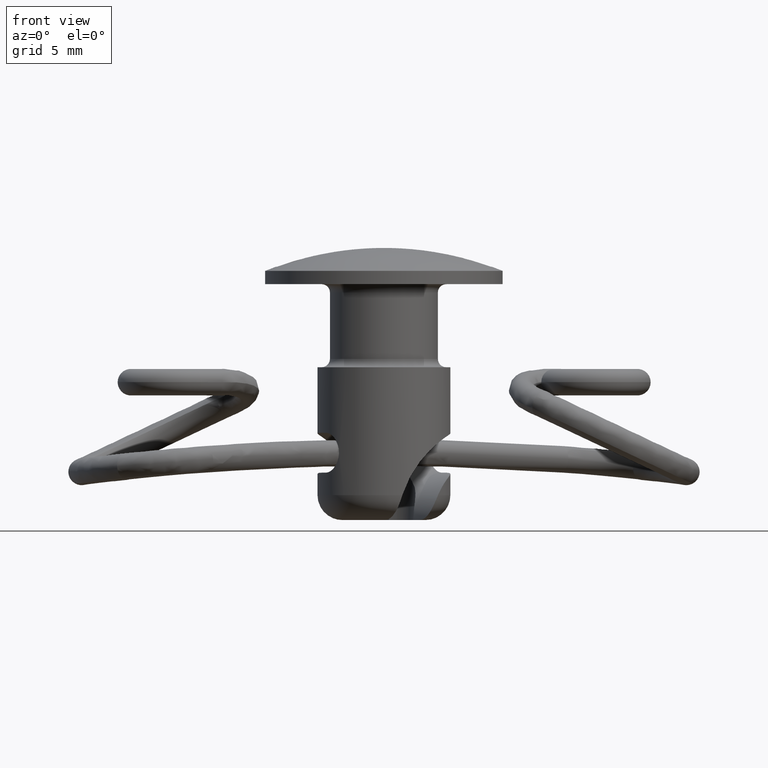
[diagram: clean part render]
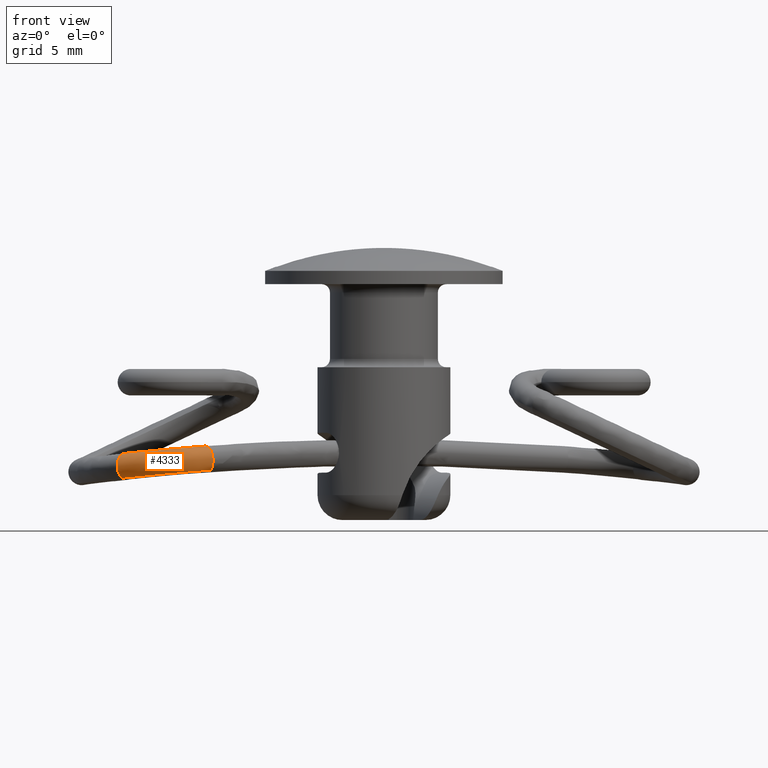
[diagram: same view with one face highlighted and labeled with its STEP entity id]
A machine part, front view. The second image highlights one B-rep face of the part: STEP entity #4333.
In plain terms, the highlighted face is a freeform B-spline surface patch.
Its self-contained STEP definition (entity closure, byte-faithful):
#18 = CARTESIAN_POINT ( 'NONE',  ( -15.02930971587724900, -5.372364427299720200, -0.2322864669839410400 ) ) ;
#44 = CARTESIAN_POINT ( 'NONE',  ( -15.00189817124306500, -5.617182274750339500, -0.1130870904866344800 ) ) ;
#96 = CARTESIAN_POINT ( 'NONE',  ( -15.48498928627725000, -5.458920693469810500, -0.04882895653695230200 ) ) ;
#126 = CARTESIAN_POINT ( 'NONE',  ( -15.41867331236455000, -5.813277276531279900, 0.001849039235528509900 ) ) ;
#152 = CARTESIAN_POINT ( 'NONE',  ( -15.46886752409985100, -6.279573824267040500, -0.08750746950594809300 ) ) ;
#184 = CARTESIAN_POINT ( 'NONE',  ( -15.14365453789425000, -6.694896460229360400, -0.1804110488929655000 ) ) ;
#217 = CARTESIAN_POINT ( 'NONE',  ( -14.99054054157909900, -7.015966906098349800, -0.5164090022142989700 ) ) ;
#249 = CARTESIAN_POINT ( 'NONE',  ( -14.27580094091183900, -7.358010234672909700, -0.6671127272029120400 ) ) ;
#279 = CARTESIAN_POINT ( 'NONE',  ( -13.71798319859626000, -7.401146828258419900, -1.025335324360812100 ) ) ;
#315 = CARTESIAN_POINT ( 'NONE',  ( -12.21565495642188100, -7.416354807816950300, -1.074205917808259900 ) ) ;
#347 = CARTESIAN_POINT ( 'NONE',  ( -11.30877912686222000, -6.868109711038539600, -1.229501397181409900 ) ) ;
#374 = CARTESIAN_POINT ( 'NONE',  ( -15.71412257324891500, -5.816220919460895400, -0.05144891518670393500 ) ) ;
#378 = CARTESIAN_POINT ( 'NONE',  ( -10.60735959630821900, -6.209621772410620200, -1.219698962427302000 ) ) ;
#411 = CARTESIAN_POINT ( 'NONE',  ( -15.25139657203550100, -5.156299177255849700, -1.430897479078141900 ) ) ;
#442 = CARTESIAN_POINT ( 'NONE',  ( -15.09176781806720100, -5.021845710097149900, -1.062465916509933900 ) ) ;
#452 = VERTEX_POINT ( 'NONE', #4572 ) ;
#473 = CARTESIAN_POINT ( 'NONE',  ( -15.02895409303450000, -5.040186361077609900, -0.8332329620564740100 ) ) ;
#507 = CARTESIAN_POINT ( 'NONE',  ( -11.64454450115385100, -6.187033265300744500, 0.2013620311950771500 ) ) ;
#545 = VERTEX_POINT ( 'NONE', #8768 ) ;
#549 = ORIENTED_EDGE ( 'NONE', *, *, #8352, .F. ) ;
#566 = CARTESIAN_POINT ( 'NONE',  ( -15.74401823566723400, -6.036276767268649500, -1.534523566771248000 ) ) ;
#570 = EDGE_LOOP ( 'NONE', ( #3279, #6778, #7228, #549, #1094 ) ) ;
#579 = B_SPLINE_CURVE_WITH_KNOTS ( 'NONE', 3,
 ( #2199, #7173, #3694, #8590 ),
 .UNSPECIFIED., .F., .F.,
 ( 4, 4 ),
 ( 0.002021082293604056000, 0.002464762470341464200 ),
 .UNSPECIFIED. ) ;
#684 = CARTESIAN_POINT ( 'NONE',  ( -14.79873471016542100, -5.370092543939669800, -0.3954694969272865000 ) ) ;
#696 = B_SPLINE_CURVE_WITH_KNOTS ( 'NONE', 3,
 ( #2649, #4044, #566, #5444, #1268, #6140, #1976, #6856, #2676, #7556, #3377, #8267 ),
 .UNSPECIFIED., .F., .F.,
 ( 4, 2, 2, 2, 2, 4 ),
 ( -0.001329124780657074200, 0.0000000000000000000, 0.1250000000000000000, 0.2499999999999999700, 0.5000000000000000000, 1.000000000000000000 ),
 .UNSPECIFIED. ) ;
#713 = CARTESIAN_POINT ( 'NONE',  ( -14.57440543778739800, -5.671496985014401000, -0.1841871178805074800 ) ) ;
#739 = CARTESIAN_POINT ( 'NONE',  ( -14.49778348330454000, -5.915004468649350100, -0.06043541979251460700 ) ) ;
#741 = CARTESIAN_POINT ( 'NONE',  ( -15.46060171651869900, -5.238380405944560000, -0.1626451365804365000 ) ) ;
#768 = CARTESIAN_POINT ( 'NONE',  ( -15.15190015479029900, -5.507335289364520200, -0.1291316060067578000 ) ) ;
#795 = CARTESIAN_POINT ( 'NONE',  ( -15.11356420063525100, -5.760701711634409200, -0.008769117166070979800 ) ) ;
#828 = CARTESIAN_POINT ( 'NONE',  ( -14.87772599625540200, -6.171882785471130000, 0.05892479698863260100 ) ) ;
#858 = CARTESIAN_POINT ( 'NONE',  ( -14.85714895989347900, -6.640926086031539600, -0.02388436003081129800 ) ) ;
#869 = VERTEX_POINT ( 'NONE', #6859 ) ;
#893 = CARTESIAN_POINT ( 'NONE',  ( -14.25136646792312000, -7.097282387429360500, -0.09029062353202109400 ) ) ;
#924 = CARTESIAN_POINT ( 'NONE',  ( -13.78640542446244100, -7.444682807807240000, -0.3975910796361234500 ) ) ;
#956 = CARTESIAN_POINT ( 'NONE',  ( -12.24394950544912100, -7.633286509575670600, -0.4784288708766409900 ) ) ;
#988 = CARTESIAN_POINT ( 'NONE',  ( -11.19109056640944100, -7.332112399492400500, -0.8029766150277659600 ) ) ;
#1020 = CARTESIAN_POINT ( 'NONE',  ( -10.34336892242030000, -6.704679470836469900, -0.9267389175951389300 ) ) ;
#1051 = CARTESIAN_POINT ( 'NONE',  ( -15.61775444327454900, -5.607907636769259500, -1.680758436443815100 ) ) ;
#1084 = CARTESIAN_POINT ( 'NONE',  ( -15.31107385909070100, -5.339762659919269800, -1.563902302091960000 ) ) ;
#1094 = ORIENTED_EDGE ( 'NONE', *, *, #3648, .T. ) ;
#1117 = CARTESIAN_POINT ( 'NONE',  ( -15.14786096530910200, -5.246513926838880500, -1.419657245253492100 ) ) ;
#1146 = CARTESIAN_POINT ( 'NONE',  ( -14.83670794210752100, -5.244064188758129900, -1.034775879140316100 ) ) ;
#1268 = CARTESIAN_POINT ( 'NONE',  ( -15.36341653956057500, -6.342138234676699700, -1.493558375437982400 ) ) ;
#1361 = CARTESIAN_POINT ( 'NONE',  ( -14.41137393189460200, -5.486858274348150200, -0.7673351309441469600 ) ) ;
#1390 = CARTESIAN_POINT ( 'NONE',  ( -14.33555750623738100, -5.643650114780899500, -0.3469935752697034800 ) ) ;
#1415 = CARTESIAN_POINT ( 'NONE',  ( -13.90026093269526100, -5.975581736746870700, -0.1155924701595313900 ) ) ;
#1445 = CARTESIAN_POINT ( 'NONE',  ( -13.58516368635971000, -6.240260911519534700, 0.03027255433213129500 ) ) ;
#1474 = CARTESIAN_POINT ( 'NONE',  ( -14.67056050060472000, -5.824748546919784600, -0.07827426161724018700 ) ) ;
#1504 = CARTESIAN_POINT ( 'NONE',  ( -14.58584610353080000, -6.072493859195709800, 0.04628980748472079400 ) ) ;
#1536 = CARTESIAN_POINT ( 'NONE',  ( -14.09581270330590100, -6.524661754577169700, 0.1381565468591130200 ) ) ;
#1565 = CARTESIAN_POINT ( 'NONE',  ( -13.75013188258764000, -7.035405115855560600, 0.08557433046354269400 ) ) ;
#1593 = CARTESIAN_POINT ( 'NONE',  ( -12.32201375352987900, -7.359140313382010100, 0.08905124997345800800 ) ) ;
#1622 = CARTESIAN_POINT ( 'NONE',  ( -11.22715850174428100, -7.374708548350939800, -0.1724030372622324900 ) ) ;
#1659 = CARTESIAN_POINT ( 'NONE',  ( -10.28260610893401900, -6.887731973545510500, -0.3239135280437844800 ) ) ;
#1688 = CARTESIAN_POINT ( 'NONE',  ( -16.01853713216720000, -6.038873459445290400, -1.447862570212380000 ) ) ;
#1722 = CARTESIAN_POINT ( 'NONE',  ( -15.71510844238095000, -5.819681376375120500, -1.647848742657525000 ) ) ;
#1756 = CARTESIAN_POINT ( 'NONE',  ( -15.51775958207370100, -5.695038103834299600, -1.669902580577620000 ) ) ;
#1788 = CARTESIAN_POINT ( 'NONE',  ( -15.04969496677600000, -5.567485097004300200, -1.535526291500809900 ) ) ;
#1820 = CARTESIAN_POINT ( 'NONE',  ( -14.80344718587692100, -5.526352900521909600, -1.382491308174476300 ) ) ;
#1851 = CARTESIAN_POINT ( 'NONE',  ( -14.40908396746069900, -5.524140766767110300, -0.9895256702350878600 ) ) ;
#1976 = CARTESIAN_POINT ( 'NONE',  ( -14.74565589207525000, -6.706568139575954200, -1.429328018954152200 ) ) ;
#1987 = CARTESIAN_POINT ( 'NONE',  ( -10.87585348214401800, -5.951077172690790300, 0.3801702269579539900 ) ) ;
#2013 = CARTESIAN_POINT ( 'NONE',  ( -10.77885628185210000, -6.124971845527370300, 0.4258101081857574900 ) ) ;
#2059 = CARTESIAN_POINT ( 'NONE',  ( -13.77926273116870000, -5.771685961555720100, -0.7028949418566669000 ) ) ;
#2089 = CARTESIAN_POINT ( 'NONE',  ( -13.49737394018385900, -5.942216208890720000, -0.2634698529200554800 ) ) ;
#2119 = CARTESIAN_POINT ( 'NONE',  ( -12.44216843597988000, -6.173573391964240800, 0.02073642725402189900 ) ) ;
#2146 = CARTESIAN_POINT ( 'NONE',  ( -11.64454450115385100, -6.187033265300744500, 0.2013620311950771500 ) ) ;
#2175 = CARTESIAN_POINT ( 'NONE',  ( -13.96326545088578000, -6.143828908085800400, -0.006407195955681403900 ) ) ;
#2199 = CARTESIAN_POINT ( 'NONE',  ( -15.30485149182545600, -5.374076189625347100, -0.1457364550413047000 ) ) ;
#2204 = CARTESIAN_POINT ( 'NONE',  ( -13.63041112184640000, -6.413063073571839500, 0.1411291615717955900 ) ) ;
#2233 = CARTESIAN_POINT ( 'NONE',  ( -12.40411872287474000, -6.754507342893419700, 0.2958122863251945200 ) ) ;
#2260 = CARTESIAN_POINT ( 'NONE',  ( -11.39585482546992000, -6.970945911307440600, 0.2928378863401570100 ) ) ;
#2293 = CARTESIAN_POINT ( 'NONE',  ( -10.46066518790170000, -6.651549607077129200, 0.2356502687704284900 ) ) ;
#2325 = CARTESIAN_POINT ( 'NONE',  ( -16.21897157512455200, -6.196742711279609800, -0.8686371202015799000 ) ) ;
#2357 = CARTESIAN_POINT ( 'NONE',  ( -16.06719358871409800, -6.180471984201620500, -1.265130551836247900 ) ) ;
#2387 = CARTESIAN_POINT ( 'NONE',  ( -15.92196835033060000, -6.123019512232160000, -1.437378644516351900 ) ) ;
#2422 = CARTESIAN_POINT ( 'NONE',  ( -15.44401750310750100, -6.055863227294770100, -1.618418420802620000 ) ) ;
#2453 = CARTESIAN_POINT ( 'NONE',  ( -15.12129112452749900, -6.016917755318599100, -1.627163117021595000 ) ) ;
#2487 = CARTESIAN_POINT ( 'NONE',  ( -14.56101010409380000, -5.889583964661180300, -1.483908796234829900 ) ) ;
#2520 = CARTESIAN_POINT ( 'NONE',  ( -14.31779167866911900, -5.812836586579530600, -1.331729680956224000 ) ) ;
#2552 = CARTESIAN_POINT ( 'NONE',  ( -13.77004740357892100, -5.811968676397040000, -0.9244046764450509800 ) ) ;
#2649 = CARTESIAN_POINT ( 'NONE',  ( -15.74772529534690300, -6.033047189461684400, -1.534926012938498100 ) ) ;
#2662 = CARTESIAN_POINT ( 'NONE',  ( -10.95871687178445900, -5.791071054013770000, 0.2524690667627235200 ) ) ;
#2676 = CARTESIAN_POINT ( 'NONE',  ( -13.63019345242059000, -7.103102125629319200, -1.319077731612629000 ) ) ;
#2721 = CARTESIAN_POINT ( 'NONE',  ( -10.46459246550864100, -6.645935590471889800, 0.2448560505984545300 ) ) ;
#2775 = CARTESIAN_POINT ( 'NONE',  ( -12.41387388695262200, -5.956641690205519700, -0.5750406196761069800 ) ) ;
#2802 = CARTESIAN_POINT ( 'NONE',  ( -11.71604807960642000, -5.893340476764300300, -0.1063104496579113900 ) ) ;
#2828 = CARTESIAN_POINT ( 'NONE',  ( -11.03723223965561900, -5.639427100089269700, 0.1312075448545480000 ) ) ;
#2884 = CARTESIAN_POINT ( 'NONE',  ( -12.43321380497926900, -6.351658093904005900, 0.1364919806769329700 ) ) ;
#2913 = CARTESIAN_POINT ( 'NONE',  ( -11.59835951909589900, -6.357343165180600100, 0.3202143324999359700 ) ) ;
#2938 = CARTESIAN_POINT ( 'NONE',  ( -10.77324156576771900, -6.134484798515120300, 0.4241675896867125300 ) ) ;
#2969 = CARTESIAN_POINT ( 'NONE',  ( -16.10164599382879700, -5.989037725629369600, -0.2823844993560845100 ) ) ;
#2996 = CARTESIAN_POINT ( 'NONE',  ( -16.16108259447875300, -6.210788238510890100, -0.6399388552443799900 ) ) ;
#3029 = CARTESIAN_POINT ( 'NONE',  ( -16.12370725566514900, -6.279752447436510300, -0.8582948052381850200 ) ) ;
#3063 = CARTESIAN_POINT ( 'NONE',  ( -15.78868675726739700, -6.423113294472110500, -1.234895181914616100 ) ) ;
#3092 = CARTESIAN_POINT ( 'NONE',  ( -15.47508256895265100, -6.485657671560719700, -1.389240402117420100 ) ) ;
#3126 = CARTESIAN_POINT ( 'NONE',  ( -14.86107209810706000, -6.443021857445449600, -1.556968688559610100 ) ) ;
#3152 = CARTESIAN_POINT ( 'NONE',  ( -16.05404643197225000, -6.307920230719185300, -1.002824681414944900 ) ) ;
#3156 = CARTESIAN_POINT ( 'NONE',  ( -14.55671593800526000, -6.349904517901859600, -1.568356380394334800 ) ) ;
#3193 = CARTESIAN_POINT ( 'NONE',  ( -13.84635512248374100, -6.211218762111979400, -1.411331725891586100 ) ) ;
#3224 = CARTESIAN_POINT ( 'NONE',  ( -13.44074047950518000, -6.124571530963359900, -1.244473176431486000 ) ) ;
#3252 = CARTESIAN_POINT ( 'NONE',  ( -12.39042209532126100, -5.998673404448940300, -0.7952560388736699100 ) ) ;
#3279 = ORIENTED_EDGE ( 'NONE', *, *, #4442, .F. ) ;
#3291 = CARTESIAN_POINT ( 'NONE',  ( -14.67056050060472000, -5.824748546919784600, -0.07827426161724018700 ) ) ;
#3377 = CARTESIAN_POINT ( 'NONE',  ( -11.26259414481568100, -7.038419610928869500, -1.110649095877222400 ) ) ;
#3419 = CARTESIAN_POINT ( 'NONE',  ( -10.28239079042954000, -6.889566771339980600, -0.3125877090632905300 ) ) ;
#3463 = CARTESIAN_POINT ( 'NONE',  ( -11.09799505314192000, -5.456374597380230000, -0.4716178446968080100 ) ) ;
#3490 = CARTESIAN_POINT ( 'NONE',  ( -15.33450543369714900, -5.106463443439929900, -0.2654194082218480100 ) ) ;
#3520 = CARTESIAN_POINT ( 'NONE',  ( -15.41243560901999900, -5.280347353947214600, -0.1574160573673651600 ) ) ;
#3545 = CARTESIAN_POINT ( 'NONE',  ( -15.30485149182545600, -5.374076189625347100, -0.1457364550413047000 ) ) ;
#3577 = CARTESIAN_POINT ( 'NONE',  ( -10.95871687178446100, -5.791071054013765500, 0.2524690667627220200 ) ) ;
#3607 = CARTESIAN_POINT ( 'NONE',  ( -15.73528812258980000, -5.537429266115959900, -0.03252354199041044400 ) ) ;
#3636 = CARTESIAN_POINT ( 'NONE',  ( -15.94177655345505000, -5.892871288688700000, -0.1385024696623348200 ) ) ;
#3648 = EDGE_CURVE ( 'NONE', #4360, #5569, #579, .T. ) ;
#3667 = CARTESIAN_POINT ( 'NONE',  ( -16.00480038339059900, -6.073424881675210300, -0.2718705220412259700 ) ) ;
#3694 = CARTESIAN_POINT ( 'NONE',  ( -15.49958087257461200, -5.576969350105809300, -0.03816520352784062000 ) ) ;
#3700 = CARTESIAN_POINT ( 'NONE',  ( -15.88180015470334900, -6.454105189965949800, -0.6096192866922600700 ) ) ;
#3731 = CARTESIAN_POINT ( 'NONE',  ( -15.65757528925939800, -6.657991163539669800, -0.8080950630564549500 ) ) ;
#3762 = CARTESIAN_POINT ( 'NONE',  ( -15.13349770296060000, -6.860258033458030100, -1.165907853151286100 ) ) ;
#3797 = CARTESIAN_POINT ( 'NONE',  ( -14.83371851230142000, -6.864057530122320100, -1.322602791676824200 ) ) ;
#3827 = CARTESIAN_POINT ( 'NONE',  ( -14.02879370300386000, -6.817620116803910300, -1.472785747308120100 ) ) ;
#3857 = CARTESIAN_POINT ( 'NONE',  ( -16.04204383389145100, -6.232356443069098100, -0.4885048418771337200 ) ) ;
#3861 = CARTESIAN_POINT ( 'NONE',  ( -13.53755070892649900, -6.712066353662550900, -1.467396480433410100 ) ) ;
#3888 = CARTESIAN_POINT ( 'NONE',  ( -12.30498526842670000, -6.419441331954490500, -1.267431625044200100 ) ) ;
#3917 = CARTESIAN_POINT ( 'NONE',  ( -11.57998577487974100, -6.073636751979120300, -1.080367737282401900 ) ) ;
#3949 = CARTESIAN_POINT ( 'NONE',  ( -11.06047841535973900, -5.493075133937160200, -0.6907195209191080400 ) ) ;
#3988 = CARTESIAN_POINT ( 'NONE',  ( -13.96326545088578000, -6.143828908085800400, -0.006407195955681403900 ) ) ;
#4030 = B_SPLINE_SURFACE_WITH_KNOTS ( 'NONE', 3, 3, ( 
 ( #741, #7728, #4942, #768, #5641, #1474, #6342, #2175, #7062, #2884, #7756, #3577 ),
 ( #8474, #4281, #96, #4974, #795, #5670, #1504, #6368, #2204, #7089, #2913, #7785 ),
 ( #3607, #8507, #4307, #126, #5002, #828, #5698, #1536, #6400, #2233, #7120, #2938 ),
 ( #7819, #3636, #8536, #4341, #152, #5035, #858, #5725, #1565, #6433, #2260, #7148 ),
 ( #2969, #7846, #3667, #8567, #4369, #184, #5064, #893, #5754, #1593, #6465, #2293 ),
 ( #7179, #2996, #7887, #3700, #8597, #4401, #217, #5097, #924, #5787, #1622, #6496 ),
 ( #2325, #7210, #3029, #7921, #3731, #8626, #4433, #249, #5129, #956, #5819, #1659 ),
 ( #6528, #2357, #7242, #3063, #7953, #3762, #8660, #4464, #279, #5163, #988, #5853 ),
 ( #1688, #6563, #2387, #7272, #3092, #7985, #3797, #8690, #4496, #315, #5197, #1020 ),
 ( #5887, #1722, #6595, #2422, #7305, #3126, #8016, #3827, #8728, #4528, #347, #5228 ),
 ( #1051, #5919, #1756, #6631, #2453, #7339, #3156, #8049, #3861, #8761, #4563, #378 ),
 ( #5264, #1084, #5950, #1788, #6666, #2487, #7371, #3193, #8087, #3888, #8789, #4596 ),
 ( #411, #5291, #1117, #5982, #1820, #6699, #2520, #7402, #3224, #8118, #3917, #8817 ),
 ( #4630, #442, #5322, #1146, #6019, #1851, #6727, #2552, #7433, #3252, #8146, #3949 ),
 ( #8849, #4654, #473, #5349, #5533, #1361, #6229, #2059, #6942, #2775, #7647, #3463 ),
 ( #8358, #4168, #9065, #4857, #684, #5564, #1390, #6256, #2089, #6976, #2802, #7676 ),
 ( #3490, #8388, #4196, #18, #4886, #713, #5590, #1415, #6283, #2119, #7003, #2828 ),
 ( #7701, #3520, #8413, #4226, #44, #4915, #739, #5615, #1445, #6311, #2146, #7031 ) ),
 .UNSPECIFIED., .T., .F., .F.,
 ( 4, 2, 2, 2, 2, 2, 2, 2, 4 ),
 ( 4, 2, 2, 2, 2, 4 ),
 ( 0.0000000000000000000, 0.1250000000000000000, 0.2500000000000000000, 0.3750000000000000000, 0.5000000000000000000, 0.6250000000000000000, 0.7500000000000000000, 0.8750000000000000000, 1.000000000000000000 ),
 ( -0.03750384928464475100, 0.0000000000000000000, 0.1250000000000000000, 0.2500000000000000000, 0.5000000000000000000, 1.000000000000000000 ),
 .UNSPECIFIED. ) ;
#4044 = CARTESIAN_POINT ( 'NONE',  ( -15.74587590726394000, -6.034658376587034700, -1.534725239403701400 ) ) ;
#4115 = CARTESIAN_POINT ( 'NONE',  ( -10.33897054274478000, -6.713210117316860300, -0.9196697168994509800 ) ) ;
#4168 = CARTESIAN_POINT ( 'NONE',  ( -15.18565682383165200, -5.052161964406330700, -0.4372742199180499900 ) ) ;
#4196 = CARTESIAN_POINT ( 'NONE',  ( -15.23069299836915000, -5.196919296281900600, -0.2541491227783654900 ) ) ;
#4226 = CARTESIAN_POINT ( 'NONE',  ( -15.15190015479029900, -5.507335289364520200, -0.1291316060067578000 ) ) ;
#4281 = CARTESIAN_POINT ( 'NONE',  ( -15.53774197016485000, -5.412952572232799600, -0.05455602909677879900 ) ) ;
#4307 = CARTESIAN_POINT ( 'NONE',  ( -15.63490176662609900, -5.624900704679790300, -0.02162518671715470100 ) ) ;
#4333 = ADVANCED_FACE ( 'NONE', ( #8488 ), #4030, .T. ) ;
#4341 = CARTESIAN_POINT ( 'NONE',  ( -15.66881313003430000, -6.130684281719790200, -0.1088688743315779900 ) ) ;
#4360 = VERTEX_POINT ( 'NONE', #3545 ) ;
#4369 = CARTESIAN_POINT ( 'NONE',  ( -15.56186752492680000, -6.432967608905180200, -0.2241541577501390000 ) ) ;
#4401 = CARTESIAN_POINT ( 'NONE',  ( -15.21870369406860000, -6.896881199503699400, -0.5398044236784929100 ) ) ;
#4433 = CARTESIAN_POINT ( 'NONE',  ( -14.98653505034730000, -7.054111761817189600, -0.7384280340731500500 ) ) ;
#4442 = EDGE_CURVE ( 'NONE', #869, #5569, #6113, .T. ) ;
#4464 = CARTESIAN_POINT ( 'NONE',  ( -14.21049309897076000, -7.275951051135900000, -1.072767808410888000 ) ) ;
#4496 = CARTESIAN_POINT ( 'NONE',  ( -13.67544088790746000, -7.275904287681529900, -1.208221124372963900 ) ) ;
#4528 = CARTESIAN_POINT ( 'NONE',  ( -12.23356421842382100, -7.060185403937050600, -1.305717024654082100 ) ) ;
#4559 = CARTESIAN_POINT ( 'NONE',  ( -15.82195019832672100, -5.943585191153689000, -0.1169406365106694200 ) ) ;
#4563 = CARTESIAN_POINT ( 'NONE',  ( -11.37526169581340000, -6.652970279679640200, -1.276922075064296000 ) ) ;
#4572 = CARTESIAN_POINT ( 'NONE',  ( -10.42188429029150000, -6.553035516911979400, -1.048000439503312000 ) ) ;
#4596 = CARTESIAN_POINT ( 'NONE',  ( -10.81777560761312000, -5.854109881464829400, -1.150445577096152100 ) ) ;
#4630 = CARTESIAN_POINT ( 'NONE',  ( -15.13834135143370000, -4.981266365935920400, -1.067522100367278100 ) ) ;
#4654 = CARTESIAN_POINT ( 'NONE',  ( -15.08767442933055100, -4.989019340767320900, -0.8396078870630389000 ) ) ;
#4664 = CARTESIAN_POINT ( 'NONE',  ( -15.14844858936445200, -5.509860564493897600, -0.1287624610830730200 ) ) ;
#4692 = CARTESIAN_POINT ( 'NONE',  ( -12.43321380497926900, -6.351658093904005900, 0.1364919806769329700 ) ) ;
#4857 = CARTESIAN_POINT ( 'NONE',  ( -14.92982133954310200, -5.275056084252069500, -0.4094999839175789700 ) ) ;
#4886 = CARTESIAN_POINT ( 'NONE',  ( -14.89023214185088100, -5.473662837866269700, -0.2174050638071979800 ) ) ;
#4915 = CARTESIAN_POINT ( 'NONE',  ( -14.67056050060472000, -5.824748546919784600, -0.07827426161724018700 ) ) ;
#4942 = CARTESIAN_POINT ( 'NONE',  ( -15.35784114232319900, -5.327919994875856000, -0.1514890396576588900 ) ) ;
#4974 = CARTESIAN_POINT ( 'NONE',  ( -15.27449059370335000, -5.642306151429320200, -0.02597674502957455000 ) ) ;
#5002 = CARTESIAN_POINT ( 'NONE',  ( -15.24402358627585000, -5.942402754108489800, 0.02051765109678590000 ) ) ;
#5035 = CARTESIAN_POINT ( 'NONE',  ( -15.06677755743550100, -6.531438001609729800, -0.04542129767875050000 ) ) ;
#5064 = CARTESIAN_POINT ( 'NONE',  ( -14.92564769671039900, -6.808736021645680500, -0.1580337577907234800 ) ) ;
#5097 = CARTESIAN_POINT ( 'NONE',  ( -14.28501626850160000, -7.317727519831599600, -0.4456029926141515400 ) ) ;
#5129 = CARTESIAN_POINT ( 'NONE',  ( -13.77363681971851900, -7.485796718252079700, -0.6187685167980069300 ) ) ;
#5163 = CARTESIAN_POINT ( 'NONE',  ( -12.21799642776466000, -7.545566433039160100, -0.8876851698536329900 ) ) ;
#5197 = CARTESIAN_POINT ( 'NONE',  ( -11.21640916276914100, -7.208729510819200200, -0.9917967945730348200 ) ) ;
#5228 = CARTESIAN_POINT ( 'NONE',  ( -10.50039965816266000, -6.401391562987488900, -1.169261961411486100 ) ) ;
#5260 = CARTESIAN_POINT ( 'NONE',  ( -15.59824771723180200, -5.687003983437430000, -0.04427423807032425400 ) ) ;
#5264 = CARTESIAN_POINT ( 'NONE',  ( -15.35948525680735000, -5.297581991473680100, -1.569158010859434700 ) ) ;
#5291 = CARTESIAN_POINT ( 'NONE',  ( -15.20381250917965100, -5.197758991954230200, -1.425731588644502100 ) ) ;
#5322 = CARTESIAN_POINT ( 'NONE',  ( -15.03346011385890100, -5.072653262648770100, -1.056135787011750000 ) ) ;
#5349 = CARTESIAN_POINT ( 'NONE',  ( -14.83322303455700100, -5.210707842125960300, -0.8119839043220050700 ) ) ;
#5389 = CARTESIAN_POINT ( 'NONE',  ( -10.95871687178445900, -5.791071054013770000, 0.2524690667627235200 ) ) ;
#5444 = CARTESIAN_POINT ( 'NONE',  ( -15.56660794202055200, -6.190834089359609200, -1.515263559825532000 ) ) ;
#5533 = CARTESIAN_POINT ( 'NONE',  ( -14.70773942154412100, -5.301329345887240600, -0.7985504028683539900 ) ) ;
#5564 = CARTESIAN_POINT ( 'NONE',  ( -14.49428995856890100, -5.560763932812689900, -0.3634222407622979500 ) ) ;
#5569 = VERTEX_POINT ( 'NONE', #8764 ) ;
#5590 = CARTESIAN_POINT ( 'NONE',  ( -14.40972086307827900, -5.757515078102989600, -0.1671606470697500100 ) ) ;
#5615 = CARTESIAN_POINT ( 'NONE',  ( -13.96326545088578000, -6.143828908085800400, -0.006407195955681403900 ) ) ;
#5641 = CARTESIAN_POINT ( 'NONE',  ( -15.00189817124306500, -5.617182274750339500, -0.1130870904866344800 ) ) ;
#5670 = CARTESIAN_POINT ( 'NONE',  ( -14.76671556342203900, -5.978000108825170000, 0.02763859464602709900 ) ) ;
#5698 = CARTESIAN_POINT ( 'NONE',  ( -14.68672343737444000, -6.271668090323349700, 0.07859294164738871200 ) ) ;
#5725 = CARTESIAN_POINT ( 'NONE',  ( -14.20870854959678000, -6.918477434117029600, 0.04132405683163474500 ) ) ;
#5754 = CARTESIAN_POINT ( 'NONE',  ( -13.77461665927494000, -7.218791506185599600, -0.04433200084938310200 ) ) ;
#5787 = CARTESIAN_POINT ( 'NONE',  ( -12.26740129708122000, -7.591254795332259800, -0.2582134516805694700 ) ) ;
#5819 = CARTESIAN_POINT ( 'NONE',  ( -11.19648183516612000, -7.415358225192070700, -0.3920144181429194900 ) ) ;
#5853 = CARTESIAN_POINT ( 'NONE',  ( -10.29426509382538100, -6.814329991907509800, -0.7361462911280181000 ) ) ;
#5887 = CARTESIAN_POINT ( 'NONE',  ( -15.76634456652404700, -5.775039534436029200, -1.653411113495205000 ) ) ;
#5915 = CARTESIAN_POINT ( 'NONE',  ( -15.85280669512782300, -6.139286267949828800, -1.451058761886816700 ) ) ;
#5919 = CARTESIAN_POINT ( 'NONE',  ( -15.56751137535485100, -5.651684232561979800, -1.675303875224249900 ) ) ;
#5950 = CARTESIAN_POINT ( 'NONE',  ( -15.25705133462935100, -5.386837084571960000, -1.558037374211680000 ) ) ;
#5982 = CARTESIAN_POINT ( 'NONE',  ( -14.94527818691990000, -5.423003756158359500, -1.397664376058826100 ) ) ;
#6019 = CARTESIAN_POINT ( 'NONE',  ( -14.70880189837326000, -5.336559874031720200, -1.021084770899692000 ) ) ;
#6110 = EDGE_CURVE ( 'NONE', #869, #452, #696, .T. ) ;
#6113 = B_SPLINE_CURVE_WITH_KNOTS ( 'NONE', 3,
 ( #7060, #5915, #7335, #3152, #8045, #3857, #8755, #4559, #374, #5260 ),
 .UNSPECIFIED., .F., .F.,
 ( 4, 2, 2, 2, 4 ),
 ( 0.0004186719201490222100, 0.0009397129208729612100, 0.001460753921596900300, 0.001981794922320839800, 0.002502835923044779200 ),
 .UNSPECIFIED. ) ;
#6140 = CARTESIAN_POINT ( 'NONE',  ( -14.95722716092447900, -6.596273419350880300, -1.451055832296342100 ) ) ;
#6229 = CARTESIAN_POINT ( 'NONE',  ( -14.25690432503240000, -5.567460846408110300, -0.7513354046738010000 ) ) ;
#6256 = CARTESIAN_POINT ( 'NONE',  ( -13.84457057310976100, -5.853745145092919900, -0.2972398606486915100 ) ) ;
#6283 = CARTESIAN_POINT ( 'NONE',  ( -13.53991625087302200, -6.067458749467229900, -0.08058405290753299600 ) ) ;
#6311 = CARTESIAN_POINT ( 'NONE',  ( -12.43321380497926900, -6.351658093904005900, 0.1364919806769329700 ) ) ;
#6342 = CARTESIAN_POINT ( 'NONE',  ( -14.49778348330454000, -5.915004468649350100, -0.06043541979251460700 ) ) ;
#6368 = CARTESIAN_POINT ( 'NONE',  ( -14.02626996907630100, -6.312076079424730100, 0.1027780782481685900 ) ) ;
#6400 = CARTESIAN_POINT ( 'NONE',  ( -13.67780642985362000, -6.631296683486209700, 0.1785913031525425100 ) ) ;
#6433 = CARTESIAN_POINT ( 'NONE',  ( -12.35283812397504000, -7.170486867826710400, 0.2139621344899619900 ) ) ;
#6465 = CARTESIAN_POINT ( 'NONE',  ( -11.32715287119599900, -7.151816124276789000, 0.1710806725922944800 ) ) ;
#6496 = CARTESIAN_POINT ( 'NONE',  ( -10.32012274671620000, -6.851031436988590100, -0.1048118518214846000 ) ) ;
#6528 = CARTESIAN_POINT ( 'NONE',  ( -16.12058661492955000, -6.133950841612970000, -1.270927083422563900 ) ) ;
#6563 = CARTESIAN_POINT ( 'NONE',  ( -15.96572116467070200, -6.084891812946289700, -1.442128686116352000 ) ) ;
#6595 = CARTESIAN_POINT ( 'NONE',  ( -15.66767206242249900, -5.861018115044290200, -1.642698810757824900 ) ) ;
#6631 = CARTESIAN_POINT ( 'NONE',  ( -15.29983478444615000, -5.884892102192799800, -1.646244205067720000 ) ) ;
#6666 = CARTESIAN_POINT ( 'NONE',  ( -14.89644718670367900, -5.679746685159770400, -1.519137996418670000 ) ) ;
#6699 = CARTESIAN_POINT ( 'NONE',  ( -14.48413312363485900, -5.726125506041269900, -1.348919045020613900 ) ) ;
#6727 = CARTESIAN_POINT ( 'NONE',  ( -14.25289883380060000, -5.605605702126950100, -0.9733544365328370400 ) ) ;
#6778 = ORIENTED_EDGE ( 'NONE', *, *, #6110, .T. ) ;
#6856 = CARTESIAN_POINT ( 'NONE',  ( -14.09179822119456000, -6.985867288142841000, -1.363600473104458000 ) ) ;
#6859 = CARTESIAN_POINT ( 'NONE',  ( -15.74772529534690300, -6.033047189461684400, -1.534926012938498100 ) ) ;
#6897 = CARTESIAN_POINT ( 'NONE',  ( -10.55719530497620100, -6.499535890884689400, 0.3532666022036665100 ) ) ;
#6942 = CARTESIAN_POINT ( 'NONE',  ( -13.44172031906198100, -5.857566318896680900, -0.6700366604832340700 ) ) ;
#6976 = CARTESIAN_POINT ( 'NONE',  ( -12.43982696463782000, -6.044361766741290300, -0.1657843206998580200 ) ) ;
#7003 = CARTESIAN_POINT ( 'NONE',  ( -11.69072948321180000, -6.016723365420890700, 0.08250972989021830600 ) ) ;
#7023 = B_SPLINE_CURVE_WITH_KNOTS ( 'NONE', 3,
 ( #8028, #4664, #7472, #3291, #8185, #3988, #8887, #4692, #507, #5389 ),
 .UNSPECIFIED., .F., .F.,
 ( 4, 2, 2, 2, 4 ),
 ( 0.001437270221971941300, 0.1250000000000000000, 0.2500000000000000000, 0.5000000000000000000, 1.000000000000000000 ),
 .UNSPECIFIED. ) ;
#7031 = CARTESIAN_POINT ( 'NONE',  ( -10.95871687178446100, -5.791071054013765500, 0.2524690667627220200 ) ) ;
#7060 = CARTESIAN_POINT ( 'NONE',  ( -15.74772529534690300, -6.033047189461684400, -1.534926012938498100 ) ) ;
#7062 = CARTESIAN_POINT ( 'NONE',  ( -13.58516368635971000, -6.240260911519534700, 0.03027255433213129500 ) ) ;
#7089 = CARTESIAN_POINT ( 'NONE',  ( -12.42425917397866000, -6.529742795843770200, 0.2522475340998440200 ) ) ;
#7120 = CARTESIAN_POINT ( 'NONE',  ( -11.53187695016132100, -6.572482596539440000, 0.3676350103813425500 ) ) ;
#7148 = CARTESIAN_POINT ( 'NONE',  ( -10.56282555446279900, -6.489996689460920000, 0.3549142043555599800 ) ) ;
#7173 = CARTESIAN_POINT ( 'NONE',  ( -15.39559358739292200, -5.465944142813916600, -0.07325514834121892000 ) ) ;
#7179 = CARTESIAN_POINT ( 'NONE',  ( -16.21470121443065100, -6.164070536949299800, -0.6457598780669470100 ) ) ;
#7210 = CARTESIAN_POINT ( 'NONE',  ( -16.16517598321540200, -6.243614607840680000, -0.8627968846912790200 ) ) ;
#7228 = ORIENTED_EDGE ( 'NONE', *, *, #7695, .F. ) ;
#7242 = CARTESIAN_POINT ( 'NONE',  ( -16.02478624388890100, -6.217427537435019900, -1.260526575331480000 ) ) ;
#7272 = CARTESIAN_POINT ( 'NONE',  ( -15.68919838093360200, -6.325804951424449200, -1.412108698848443900 ) ) ;
#7305 = CARTESIAN_POINT ( 'NONE',  ( -15.25175051016850100, -6.198618797792679700, -1.597876348758544800 ) ) ;
#7335 = CARTESIAN_POINT ( 'NONE',  ( -15.94256385979125500, -6.222283962817495100, -1.315424646859679500 ) ) ;
#7339 = CARTESIAN_POINT ( 'NONE',  ( -14.75006166527409900, -6.249139180799489600, -1.588254890902025100 ) ) ;
#7371 = CARTESIAN_POINT ( 'NONE',  ( -14.38629041548622200, -5.980646522193569400, -1.465879078715949900 ) ) ;
#7402 = CARTESIAN_POINT ( 'NONE',  ( -13.80369720415775900, -6.032413808799469200, -1.279717045527555900 ) ) ;
#7433 = CARTESIAN_POINT ( 'NONE',  ( -13.42895171431768000, -5.898680229341530400, -0.8912140976443749800 ) ) ;
#7472 = CARTESIAN_POINT ( 'NONE',  ( -14.99999328417336000, -5.618375590038639600, -0.1128869487175281500 ) ) ;
#7556 = CARTESIAN_POINT ( 'NONE',  ( -12.22460958742285100, -7.238270105877000500, -1.189961471231171000 ) ) ;
#7595 = CARTESIAN_POINT ( 'NONE',  ( -10.31619547026559900, -6.856645451951878900, -0.1140176308530070100 ) ) ;
#7647 = CARTESIAN_POINT ( 'NONE',  ( -11.71065681091765900, -5.810094651086820300, -0.5172726465467090100 ) ) ;
#7676 = CARTESIAN_POINT ( 'NONE',  ( -11.08633606825056000, -5.529776579018239600, -0.05938508161257290100 ) ) ;
#7695 = EDGE_CURVE ( 'NONE', #545, #452, #7796, .T. ) ;
#7701 = CARTESIAN_POINT ( 'NONE',  ( -15.46060171651869900, -5.238380405944560000, -0.1626451365804365000 ) ) ;
#7728 = CARTESIAN_POINT ( 'NONE',  ( -15.41243560901999900, -5.280347353947214600, -0.1574160573673651600 ) ) ;
#7756 = CARTESIAN_POINT ( 'NONE',  ( -11.64454450115385100, -6.187033265300744500, 0.2013620311950771500 ) ) ;
#7785 = CARTESIAN_POINT ( 'NONE',  ( -10.88020150391330000, -5.942715007938260500, 0.3737305886708959800 ) ) ;
#7796 = B_SPLINE_CURVE_WITH_KNOTS ( 'NONE', 3,
 ( #2662, #1987, #2013, #6897, #2721, #7595, #3419, #8308, #4115, #9017 ),
 .UNSPECIFIED., .F., .F.,
 ( 4, 2, 2, 2, 4 ),
 ( 0.0000000000000000000, 0.2499737226290165100, 0.4999824826791969800, 0.7499912388330189900, 1.000000000000000000 ),
 .UNSPECIFIED. ) ;
#7819 = CARTESIAN_POINT ( 'NONE',  ( -15.99355730905694800, -5.847754911411540100, -0.1441239675747906000 ) ) ;
#7846 = CARTESIAN_POINT ( 'NONE',  ( -16.04903790336630100, -6.034874956653809800, -0.2766731831098119800 ) ) ;
#7887 = CARTESIAN_POINT ( 'NONE',  ( -16.11920123484085100, -6.247285545865319800, -0.6353919802829090000 ) ) ;
#7921 = CARTESIAN_POINT ( 'NONE',  ( -15.88528506225410000, -6.487461536598030600, -0.8324112615105719900 ) ) ;
#7953 = CARTESIAN_POINT ( 'NONE',  ( -15.56658000063795000, -6.589227965487319600, -1.211175968997331800 ) ) ;
#7985 = CARTESIAN_POINT ( 'NONE',  ( -15.05338222374189900, -6.749524981256310100, -1.345142976033074000 ) ) ;
#8016 = CARTESIAN_POINT ( 'NONE',  ( -14.65759327184908000, -6.549078749029590100, -1.536053246231480000 ) ) ;
#8028 = CARTESIAN_POINT ( 'NONE',  ( -15.30485149182545600, -5.374076189625347100, -0.1457364550413047000 ) ) ;
#8045 = CARTESIAN_POINT ( 'NONE',  ( -16.07487856124601000, -6.309105219986208500, -0.8220249599611715300 ) ) ;
#8049 = CARTESIAN_POINT ( 'NONE',  ( -13.95925096877462000, -6.605034441651650200, -1.508164215918690100 ) ) ;
#8087 = CARTESIAN_POINT ( 'NONE',  ( -13.46522525619284000, -6.307957921293210600, -1.374379507744039900 ) ) ;
#8118 = CARTESIAN_POINT ( 'NONE',  ( -12.33580963887260000, -6.230787886398809800, -1.142520740526952000 ) ) ;
#8146 = CARTESIAN_POINT ( 'NONE',  ( -11.67998014435472100, -5.850744327929250600, -0.7368840274297170400 ) ) ;
#8185 = CARTESIAN_POINT ( 'NONE',  ( -14.49778348330454000, -5.915004468649350100, -0.06043541979251460700 ) ) ;
#8267 = CARTESIAN_POINT ( 'NONE',  ( -10.42188429029150000, -6.553035516911979400, -1.048000439503312000 ) ) ;
#8308 = CARTESIAN_POINT ( 'NONE',  ( -10.29448041245106000, -6.812495193340319900, -0.7474721144686480300 ) ) ;
#8352 = EDGE_CURVE ( 'NONE', #4360, #545, #7023, .T. ) ;
#8358 = CARTESIAN_POINT ( 'NONE',  ( -15.23245595093480100, -5.011386061272250300, -0.4423548950116644700 ) ) ;
#8388 = CARTESIAN_POINT ( 'NONE',  ( -15.28712924787515200, -5.147742135661629500, -0.2602760856379515200 ) ) ;
#8413 = CARTESIAN_POINT ( 'NONE',  ( -15.35784114232319900, -5.327919994875856000, -0.1514890396576588900 ) ) ;
#8474 = CARTESIAN_POINT ( 'NONE',  ( -15.58669799934025100, -5.370297368449190100, -0.05987086493902499900 ) ) ;
#8488 = FACE_OUTER_BOUND ( 'NONE', #570, .T. ) ;
#8507 = CARTESIAN_POINT ( 'NONE',  ( -15.68533903719094800, -5.580949716045950000, -0.02710089653004989900 ) ) ;
#8536 = CARTESIAN_POINT ( 'NONE',  ( -15.89561001407054700, -5.933101723942130000, -0.1334903930830366200 ) ) ;
#8567 = CARTESIAN_POINT ( 'NONE',  ( -15.77322990989095100, -6.275165622565720200, -0.2467307897735595000 ) ) ;
#8590 = CARTESIAN_POINT ( 'NONE',  ( -15.59824771723180200, -5.687003983437430000, -0.04427423807032425400 ) ) ;
#8597 = CARTESIAN_POINT ( 'NONE',  ( -15.65651281243024900, -6.622760635395180500, -0.5855606950249250300 ) ) ;
#8626 = CARTESIAN_POINT ( 'NONE',  ( -15.21641372963470000, -6.934163691922660400, -0.7619949629692469600 ) ) ;
#8660 = CARTESIAN_POINT ( 'NONE',  ( -14.90788186914232000, -6.977922493444309800, -1.142769863477246100 ) ) ;
#8690 = CARTESIAN_POINT ( 'NONE',  ( -14.15480273938526100, -7.154114459481770700, -1.254415198900795900 ) ) ;
#8728 = CARTESIAN_POINT ( 'NONE',  ( -13.58494601693371900, -6.930299963577109400, -1.429934338852294000 ) ) ;
#8755 = CARTESIAN_POINT ( 'NONE',  ( -15.98697450593197700, -6.152855797083336900, -0.3356735746919448600 ) ) ;
#8761 = CARTESIAN_POINT ( 'NONE',  ( -12.25370466952773900, -6.835420856887769700, -1.349281776878684200 ) ) ;
#8764 = CARTESIAN_POINT ( 'NONE',  ( -15.59824771723180200, -5.687003983437430000, -0.04427423807032425400 ) ) ;
#8768 = CARTESIAN_POINT ( 'NONE',  ( -10.95871687178445900, -5.791071054013770000, 0.2524690667627235200 ) ) ;
#8789 = CARTESIAN_POINT ( 'NONE',  ( -11.51128382056964100, -6.254506964934329000, -1.202124951026712000 ) ) ;
#8817 = CARTESIAN_POINT ( 'NONE',  ( -10.91993597417424200, -5.692556963848620200, -1.031181641511020000 ) ) ;
#8849 = CARTESIAN_POINT ( 'NONE',  ( -15.13407099073980100, -4.948594191605609500, -0.8446448582326450100 ) ) ;
#8887 = CARTESIAN_POINT ( 'NONE',  ( -13.58516368635971000, -6.240260911519534700, 0.03027255433213129500 ) ) ;
#9017 = CARTESIAN_POINT ( 'NONE',  ( -10.42188429029150000, -6.553035516911979400, -1.048000439503312000 ) ) ;
#9065 = CARTESIAN_POINT ( 'NONE',  ( -15.12787510481095100, -5.102511271079050600, -0.4310011919632980600 ) ) ;